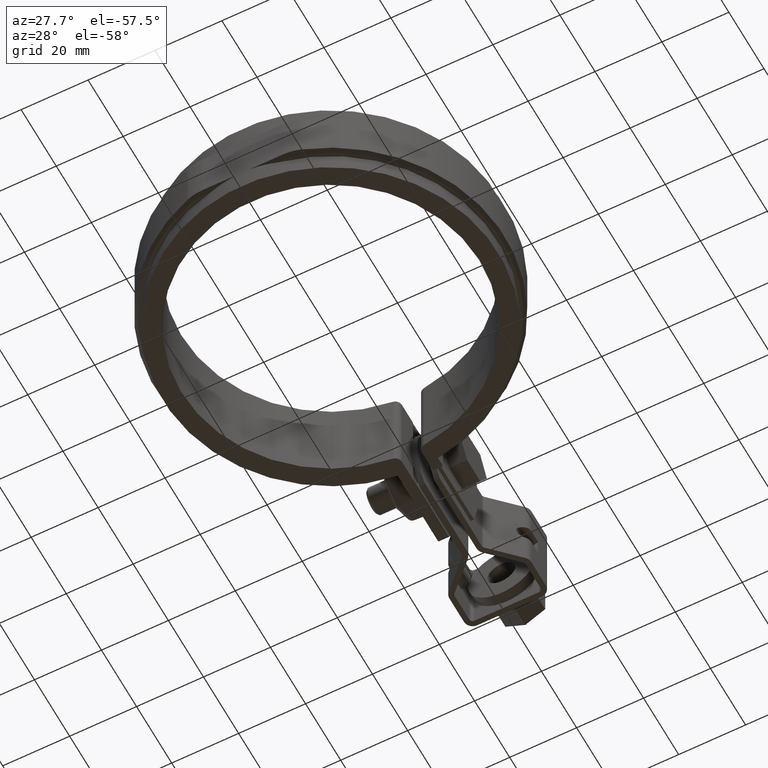
[diagram: clean part render]
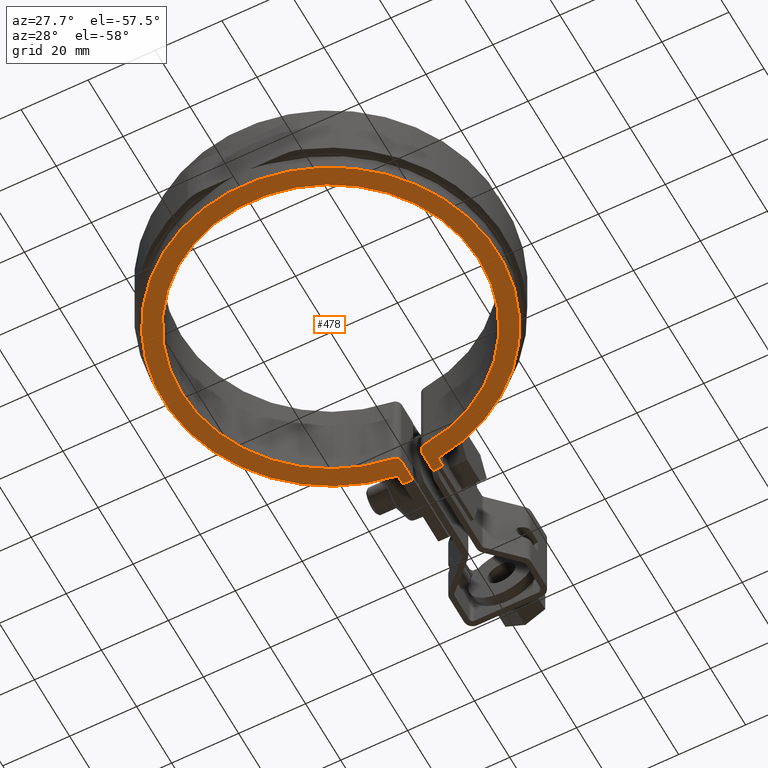
[diagram: same view with one face highlighted and labeled with its STEP entity id]
A machine part, auxiliary view. The second image highlights one B-rep face of the part: STEP entity #478.
In plain terms, the highlighted planar face has unit normal (0, 0, 1).
Its self-contained STEP definition (entity closure, byte-faithful):
#478 = ADVANCED_FACE( '', ( #934 ), #935, .F. );
#934 = FACE_OUTER_BOUND( '', #2205, .T. );
#935 = PLANE( '', #2206 );
#2205 = EDGE_LOOP( '', ( #4400, #4401, #4402, #4403, #4404, #4405, #4406, #4407, #4408, #4409 ) );
#2206 = AXIS2_PLACEMENT_3D( '', #4410, #4411, #4412 );
#4400 = ORIENTED_EDGE( '', *, *, #6473, .F. );
#4401 = ORIENTED_EDGE( '', *, *, #6514, .T. );
#4402 = ORIENTED_EDGE( '', *, *, #6376, .T. );
#4403 = ORIENTED_EDGE( '', *, *, #6521, .T. );
#4404 = ORIENTED_EDGE( '', *, *, #6409, .T. );
#4405 = ORIENTED_EDGE( '', *, *, #6536, .T. );
#4406 = ORIENTED_EDGE( '', *, *, #6508, .F. );
#4407 = ORIENTED_EDGE( '', *, *, #6528, .F. );
#4408 = ORIENTED_EDGE( '', *, *, #6524, .F. );
#4409 = ORIENTED_EDGE( '', *, *, #6534, .F. );
#4410 = CARTESIAN_POINT( '', ( -5.24038012570140, 48.1024067066612, -14.0000000000000 ) );
#4411 = DIRECTION( '', ( 0.000000000000000, 0.000000000000000, 1.00000000000000 ) );
#4412 = DIRECTION( '', ( 1.00000000000000, 0.000000000000000, 0.000000000000000 ) );
#6376 = EDGE_CURVE( '', #7424, #7422, #7425, .T. );
#6409 = EDGE_CURVE( '', #7484, #7482, #7485, .T. );
#6473 = EDGE_CURVE( '', #7586, #7587, #7588, .T. );
#6508 = EDGE_CURVE( '', #7640, #7641, #7642, .T. );
#6514 = EDGE_CURVE( '', #7586, #7424, #7650, .T. );
#6521 = EDGE_CURVE( '', #7422, #7484, #7658, .F. );
#6524 = EDGE_CURVE( '', #7661, #7662, #7663, .F. );
#6528 = EDGE_CURVE( '', #7662, #7640, #7669, .T. );
#6534 = EDGE_CURVE( '', #7587, #7661, #7675, .T. );
#6536 = EDGE_CURVE( '', #7482, #7641, #7677, .T. );
#7422 = VERTEX_POINT( '', #10471 );
#7424 = VERTEX_POINT( '', #10474 );
#7425 = LINE( '', #10475, #10476 );
#7482 = VERTEX_POINT( '', #10568 );
#7484 = VERTEX_POINT( '', #10571 );
#7485 = LINE( '', #10572, #10573 );
#7586 = VERTEX_POINT( '', #10880 );
#7587 = VERTEX_POINT( '', #10881 );
#7588 = LINE( '', #10882, #10883 );
#7640 = VERTEX_POINT( '', #11018 );
#7641 = VERTEX_POINT( '', #11019 );
#7642 = LINE( '', #11020, #11021 );
#7650 = LINE( '', #11039, #11040 );
#7658 = CIRCLE( '', #11051, 50.0500000000000 );
#7661 = VERTEX_POINT( '', #11055 );
#7662 = VERTEX_POINT( '', #11056 );
#7663 = CIRCLE( '', #11057, 44.5500000000000 );
#7669 = CIRCLE( '', #11065, 2.00000000000000 );
#7675 = CIRCLE( '', #11075, 2.00000000000000 );
#7677 = LINE( '', #11077, #11078 );
#10471 = CARTESIAN_POINT( '', ( 6.00000000000000, 49.6890581516696, -14.0000000000000 ) );
#10474 = CARTESIAN_POINT( '', ( 6.00000000000000, 52.5500000000000, -14.0000000000000 ) );
#10475 = CARTESIAN_POINT( '', ( 6.00000000000000, 48.1024067066612, -14.0000000000000 ) );
#10476 = VECTOR( '', #12742, 1000.00000000000 );
#10568 = CARTESIAN_POINT( '', ( -6.00000000000000, 52.5500000000000, -14.0000000000000 ) );
#10571 = CARTESIAN_POINT( '', ( -6.00000000000000, 49.6890581516696, -14.0000000000000 ) );
#10572 = CARTESIAN_POINT( '', ( -6.00000000000000, 48.1024067066612, -14.0000000000000 ) );
#10573 = VECTOR( '', #12784, 1000.00000000000 );
#10880 = CARTESIAN_POINT( '', ( 2.99999999999999, 52.5500000000000, -14.0000000000000 ) );
#10881 = CARTESIAN_POINT( '', ( 2.99999999999999, 46.2806925185871, -14.0000000000000 ) );
#10882 = CARTESIAN_POINT( '', ( 2.99999999999999, 52.5500000000000, -14.0000000000000 ) );
#10883 = VECTOR( '', #12852, 1000.00000000000 );
#11018 = CARTESIAN_POINT( '', ( -2.99999999999934, 46.2806925185871, -14.0000000000000 ) );
#11019 = CARTESIAN_POINT( '', ( -2.99999999999934, 52.5500000000000, -14.0000000000000 ) );
#11020 = CARTESIAN_POINT( '', ( -2.99999999999934, 46.2806925185871, -14.0000000000000 ) );
#11021 = VECTOR( '', #12904, 1000.00000000000 );
#11039 = CARTESIAN_POINT( '', ( -5.24038012570140, 52.5500000000000, -14.0000000000000 ) );
#11040 = VECTOR( '', #12909, 1000.00000000000 );
#11051 = AXIS2_PLACEMENT_3D( '', #12922, #12923, #12924 );
#11055 = CARTESIAN_POINT( '', ( 4.78517722878625, 44.2922631944802, -14.0000000000000 ) );
#11056 = CARTESIAN_POINT( '', ( -4.78517722878560, 44.2922631944803, -14.0000000000000 ) );
#11057 = AXIS2_PLACEMENT_3D( '', #12929, #12930, #12931 );
#11065 = AXIS2_PLACEMENT_3D( '', #12937, #12938, #12939 );
#11075 = AXIS2_PLACEMENT_3D( '', #12947, #12948, #12949 );
#11077 = CARTESIAN_POINT( '', ( -5.24038012570140, 52.5500000000000, -14.0000000000000 ) );
#11078 = VECTOR( '', #12953, 1000.00000000000 );
#12742 = DIRECTION( '', ( -5.55111512312578E-017, -1.00000000000000, 0.000000000000000 ) );
#12784 = DIRECTION( '', ( 5.55111512312578E-017, 1.00000000000000, 0.000000000000000 ) );
#12852 = DIRECTION( '', ( -2.77555756156289E-017, -1.00000000000000, 0.000000000000000 ) );
#12904 = DIRECTION( '', ( 2.77555756156289E-017, 1.00000000000000, 0.000000000000000 ) );
#12909 = DIRECTION( '', ( 1.00000000000000, 0.000000000000000, 0.000000000000000 ) );
#12922 = CARTESIAN_POINT( '', ( -8.67361737988404E-016, 0.000000000000000, -14.0000000000000 ) );
#12923 = DIRECTION( '', ( 0.000000000000000, 0.000000000000000, 1.00000000000000 ) );
#12924 = DIRECTION( '', ( 1.00000000000000, 0.000000000000000, 0.000000000000000 ) );
#12929 = CARTESIAN_POINT( '', ( 8.67361737988404E-016, 1.38777878078145E-014, -14.0000000000000 ) );
#12930 = DIRECTION( '', ( 0.000000000000000, 0.000000000000000, 1.00000000000000 ) );
#12931 = DIRECTION( '', ( 1.00000000000000, 0.000000000000000, 0.000000000000000 ) );
#12937 = CARTESIAN_POINT( '', ( -4.99999999999933, 46.2806925185871, -14.0000000000000 ) );
#12938 = DIRECTION( '', ( 0.000000000000000, 0.000000000000000, 1.00000000000000 ) );
#12939 = DIRECTION( '', ( 1.00000000000000, 0.000000000000000, 0.000000000000000 ) );
#12947 = CARTESIAN_POINT( '', ( 5.00000000000000, 46.2806925185871, -14.0000000000000 ) );
#12948 = DIRECTION( '', ( 0.000000000000000, 0.000000000000000, 1.00000000000000 ) );
#12949 = DIRECTION( '', ( 1.00000000000000, 0.000000000000000, 0.000000000000000 ) );
#12953 = DIRECTION( '', ( 1.00000000000000, 0.000000000000000, 0.000000000000000 ) );